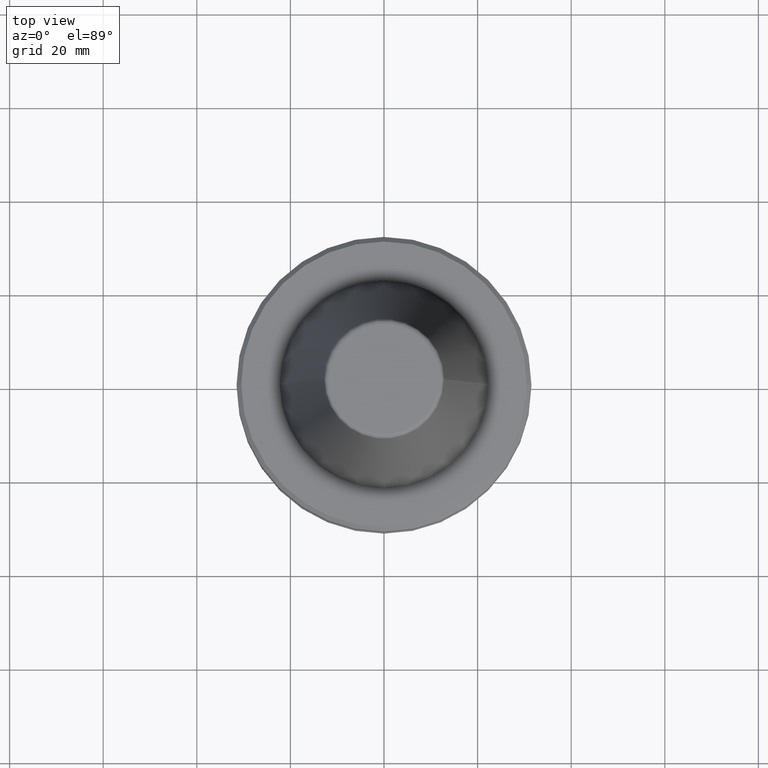
[diagram: clean part render]
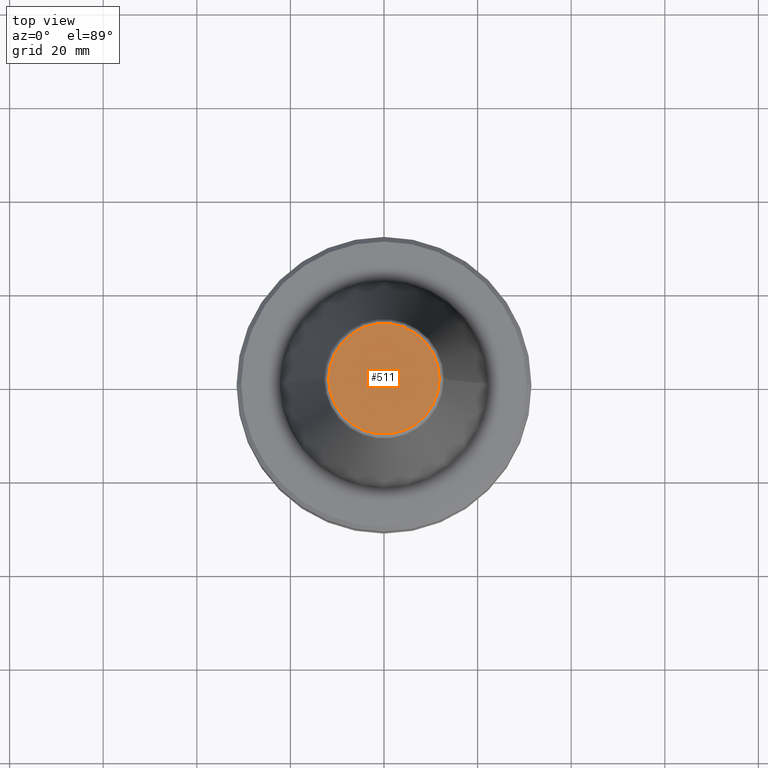
[diagram: same view with one face highlighted and labeled with its STEP entity id]
A machine part, top view. The second image highlights one B-rep face of the part: STEP entity #511.
In plain terms, the highlighted planar face has unit normal (0, 0, -1).
Its self-contained STEP definition (entity closure, byte-faithful):
#120 = CARTESIAN_POINT ( 'NONE',  ( 11.82266927716801800, 0.0000000000000000000, 66.08871321166032000 ) ) ;
#159 = AXIS2_PLACEMENT_3D ( 'NONE', #705, #665, #312 ) ;
#175 = ORIENTED_EDGE ( 'NONE', *, *, #1024, .T. ) ;
#217 = AXIS2_PLACEMENT_3D ( 'NONE', #504, #1014, #888 ) ;
#287 = AXIS2_PLACEMENT_3D ( 'NONE', #1047, #768, #399 ) ;
#312 = DIRECTION ( 'NONE',  ( 1.000000000000000000, 0.0000000000000000000, 0.0000000000000000000 ) ) ;
#376 = FACE_OUTER_BOUND ( 'NONE', #379, .T. ) ;
#379 = EDGE_LOOP ( 'NONE', ( #515, #175 ) ) ;
#399 = DIRECTION ( 'NONE',  ( -1.000000000000000000, 0.0000000000000000000, -0.0000000000000000000 ) ) ;
#498 = CIRCLE ( 'NONE', #217, 11.82266927716801800 ) ;
#504 = CARTESIAN_POINT ( 'NONE',  ( 0.0000000000000000000, 0.0000000000000000000, 66.08871321166032000 ) ) ;
#511 = ADVANCED_FACE ( 'NONE', ( #376 ), #676, .F. ) ;
#515 = ORIENTED_EDGE ( 'NONE', *, *, #785, .T. ) ;
#518 = CARTESIAN_POINT ( 'NONE',  ( -11.82266927716801800, 1.508450817090320000E-015, 66.08871321166032000 ) ) ;
#665 = DIRECTION ( 'NONE',  ( -0.0000000000000000000, -0.0000000000000000000, 1.000000000000000000 ) ) ;
#676 = PLANE ( 'NONE',  #287 ) ;
#705 = CARTESIAN_POINT ( 'NONE',  ( 0.0000000000000000000, 0.0000000000000000000, 66.08871321166032000 ) ) ;
#708 = CIRCLE ( 'NONE', #159, 11.82266927716801800 ) ;
#768 = DIRECTION ( 'NONE',  ( 0.0000000000000000000, 0.0000000000000000000, -1.000000000000000000 ) ) ;
#785 = EDGE_CURVE ( 'NONE', #1048, #1044, #708, .T. ) ;
#888 = DIRECTION ( 'NONE',  ( 1.000000000000000000, 0.0000000000000000000, 0.0000000000000000000 ) ) ;
#1014 = DIRECTION ( 'NONE',  ( -0.0000000000000000000, -0.0000000000000000000, 1.000000000000000000 ) ) ;
#1024 = EDGE_CURVE ( 'NONE', #1044, #1048, #498, .T. ) ;
#1044 = VERTEX_POINT ( 'NONE', #518 ) ;
#1047 = CARTESIAN_POINT ( 'NONE',  ( 0.0000000000000000000, 11.82266927716801800, 66.08871321166014900 ) ) ;
#1048 = VERTEX_POINT ( 'NONE', #120 ) ;